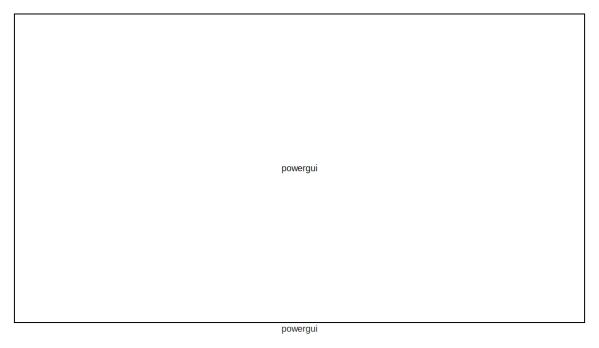
[diagram: root canvas - part 1/4, top left region]
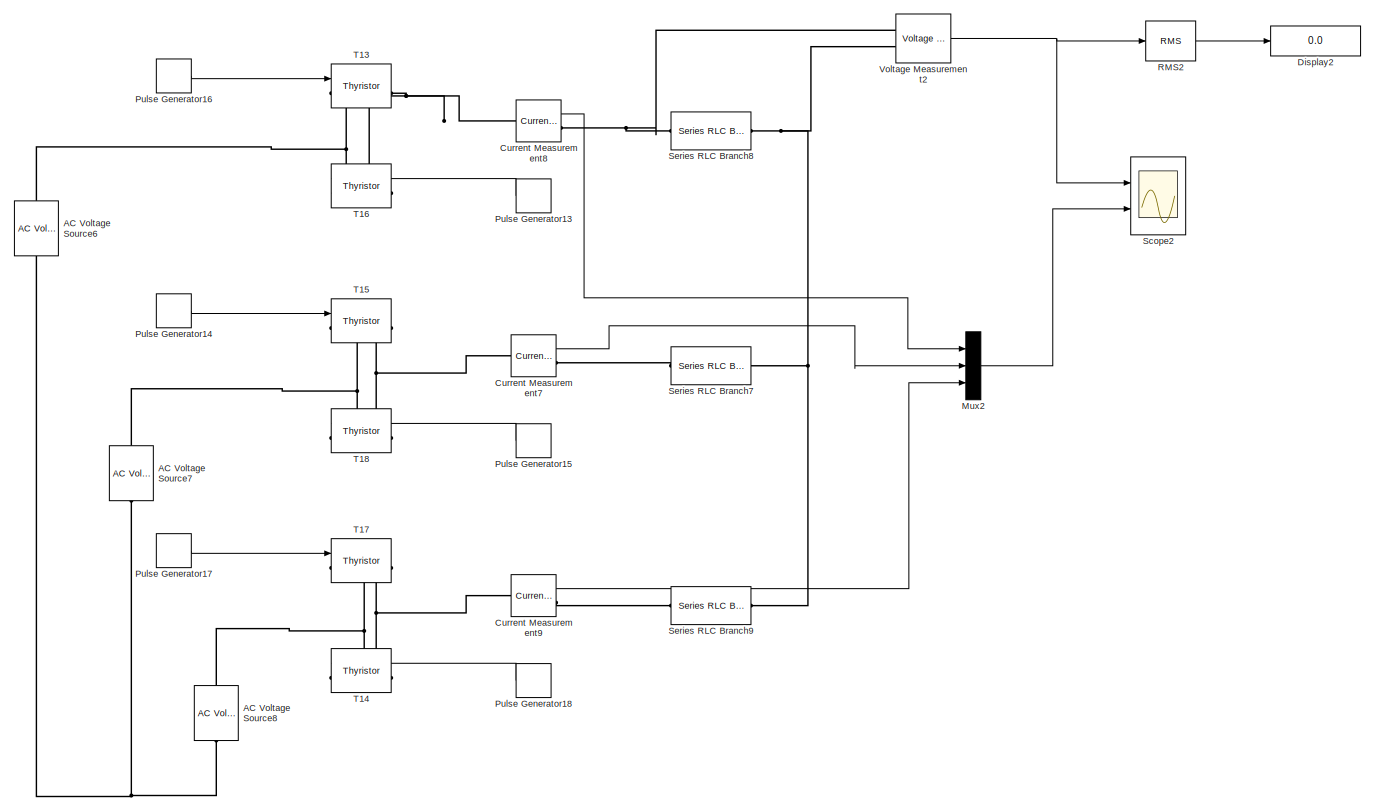
[diagram: root canvas - part 2/4, bottom right region]
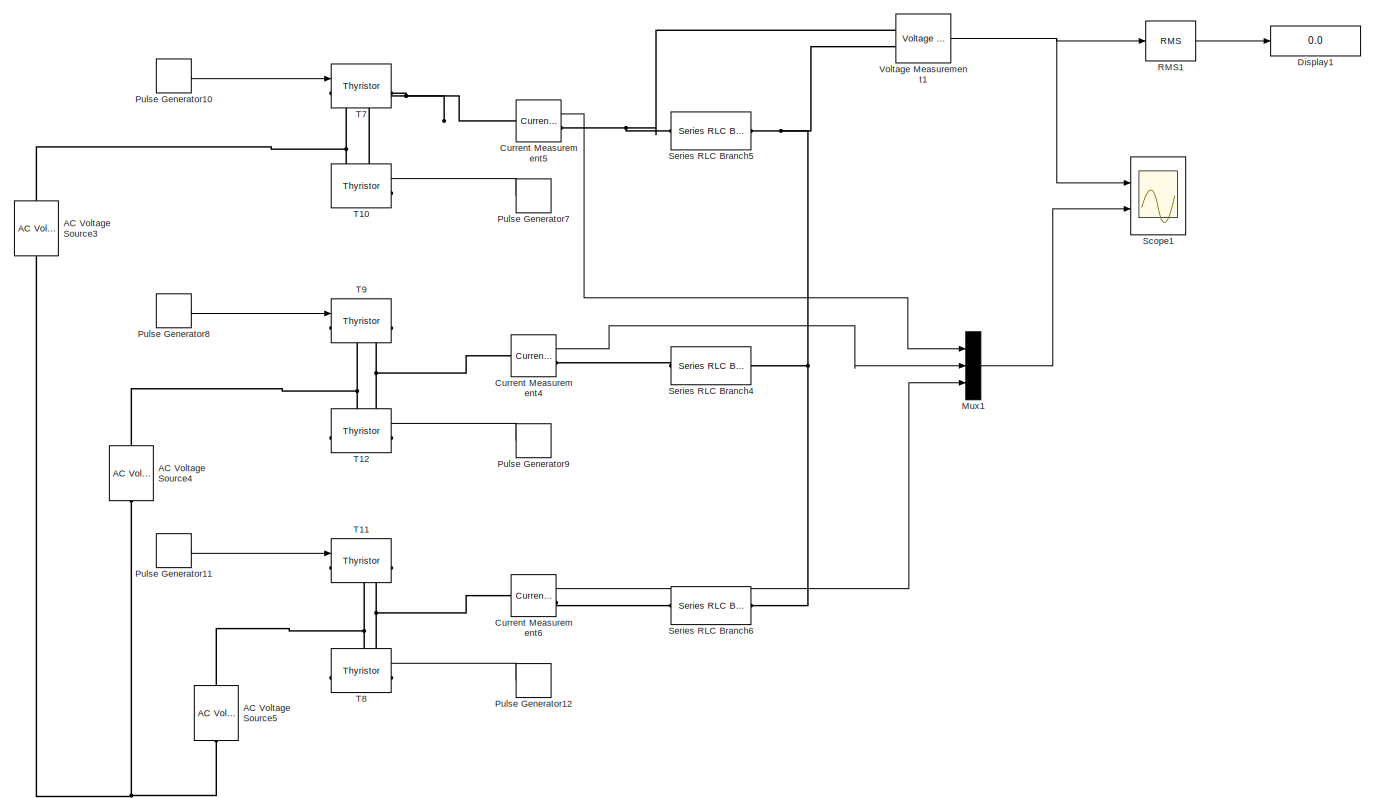
[diagram: root canvas - part 3/4, bottom center region]
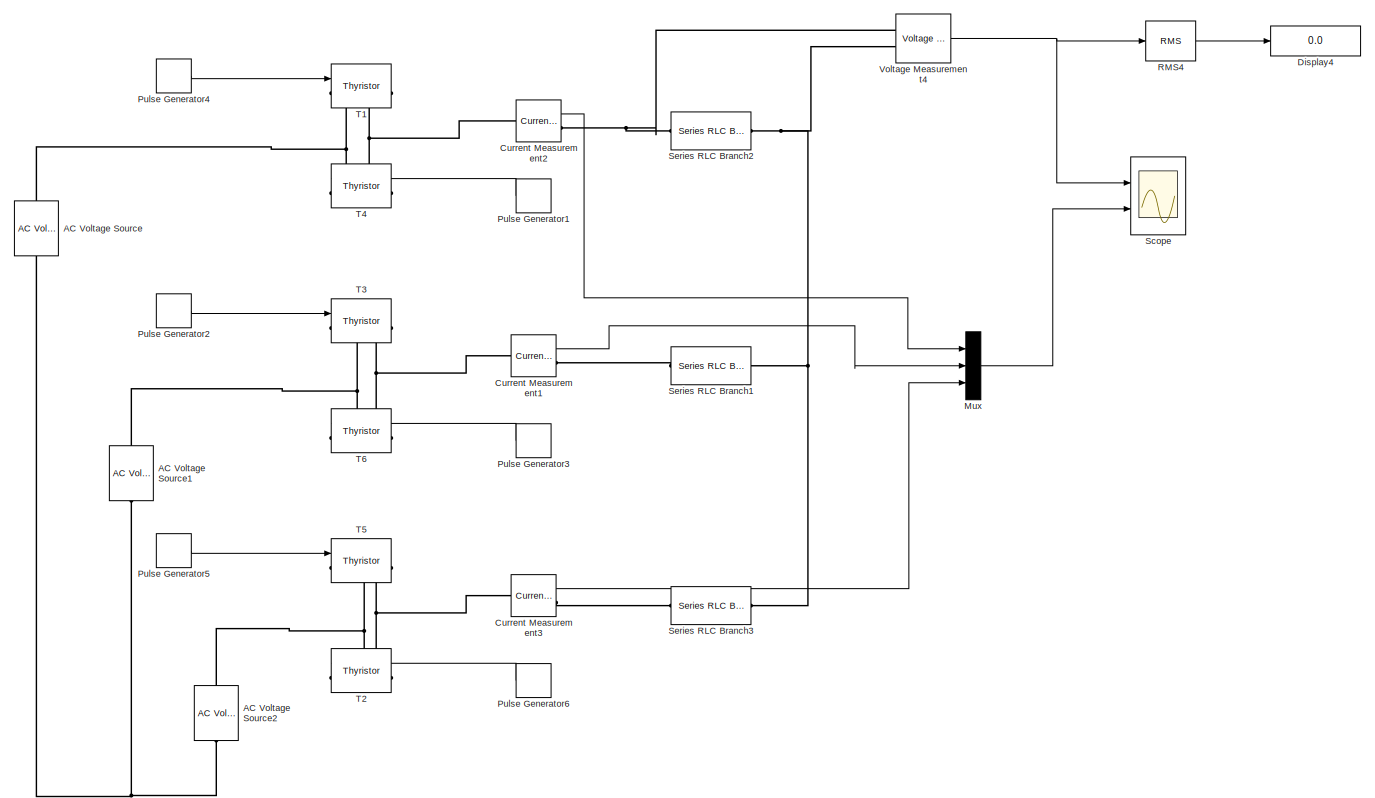
[diagram: root canvas - part 4/4, bottom left region]
MODEL slx_1764f9db46f4
KIND model
CONFIG AbsTol = auto
CONFIG EnableMultiTasking = off
CONFIG FixedStep = auto
CONFIG MaxStep = 1e-4
CONFIG MinStep = auto
CONFIG RelTol = 1e-3
CONFIG SampleTimeConstraint = Unconstrained
CONFIG SolverName = ode23tb
CONFIG StartTime = 0.0
CONFIG StopTime = 0.1
BLOCK [Reference] AC Voltage Source  REF=spsACVoltageSourceLib/AC Voltage Source
  Ports = [0, 0, 0, 0, 0, 1, 1]
  SourceBlock = spsACVoltageSourceLib/AC Voltage Source
  SourceProductBaseCode = PS
  SourceType = AC Voltage Source
BLOCK [Reference] AC Voltage Source1  REF=spsACVoltageSourceLib/AC Voltage Source
  Ports = [0, 0, 0, 0, 0, 1, 1]
  SourceBlock = spsACVoltageSourceLib/AC Voltage Source
  SourceProductBaseCode = PS
  SourceType = AC Voltage Source
BLOCK [Reference] AC Voltage Source2  REF=spsACVoltageSourceLib/AC Voltage Source
  Ports = [0, 0, 0, 0, 0, 1, 1]
  SourceBlock = spsACVoltageSourceLib/AC Voltage Source
  SourceProductBaseCode = PS
  SourceType = AC Voltage Source
BLOCK [Reference] AC Voltage Source3  REF=spsACVoltageSourceLib/AC Voltage Source
  Ports = [0, 0, 0, 0, 0, 1, 1]
  SourceBlock = spsACVoltageSourceLib/AC Voltage Source
  SourceProductBaseCode = PS
  SourceType = AC Voltage Source
BLOCK [Reference] AC Voltage Source4  REF=spsACVoltageSourceLib/AC Voltage Source
  Ports = [0, 0, 0, 0, 0, 1, 1]
  SourceBlock = spsACVoltageSourceLib/AC Voltage Source
  SourceProductBaseCode = PS
  SourceType = AC Voltage Source
BLOCK [Reference] AC Voltage Source5  REF=spsACVoltageSourceLib/AC Voltage Source
  Ports = [0, 0, 0, 0, 0, 1, 1]
  SourceBlock = spsACVoltageSourceLib/AC Voltage Source
  SourceProductBaseCode = PS
  SourceType = AC Voltage Source
BLOCK [Reference] AC Voltage Source6  REF=spsACVoltageSourceLib/AC Voltage Source
  Ports = [0, 0, 0, 0, 0, 1, 1]
  SourceBlock = spsACVoltageSourceLib/AC Voltage Source
  SourceProductBaseCode = PS
  SourceType = AC Voltage Source
BLOCK [Reference] AC Voltage Source7  REF=spsACVoltageSourceLib/AC Voltage Source
  Ports = [0, 0, 0, 0, 0, 1, 1]
  SourceBlock = spsACVoltageSourceLib/AC Voltage Source
  SourceProductBaseCode = PS
  SourceType = AC Voltage Source
BLOCK [Reference] AC Voltage Source8  REF=spsACVoltageSourceLib/AC Voltage Source
  Ports = [0, 0, 0, 0, 0, 1, 1]
  SourceBlock = spsACVoltageSourceLib/AC Voltage Source
  SourceProductBaseCode = PS
  SourceType = AC Voltage Source
BLOCK [Reference] Current Measurement1  REF=spsCurrentMeasurementLib/Current Measurement
  Ports = [0, 1, 0, 0, 0, 1, 1]
  SourceBlock = spsCurrentMeasurementLib/Current Measurement
  SourceProductBaseCode = PS
  SourceType = Current Measurement
  UserDataPersistent = on
BLOCK [Reference] Current Measurement2  REF=spsCurrentMeasurementLib/Current Measurement
  Ports = [0, 1, 0, 0, 0, 1, 1]
  SourceBlock = spsCurrentMeasurementLib/Current Measurement
  SourceProductBaseCode = PS
  SourceType = Current Measurement
  UserDataPersistent = on
BLOCK [Reference] Current Measurement3  REF=spsCurrentMeasurementLib/Current Measurement
  Ports = [0, 1, 0, 0, 0, 1, 1]
  SourceBlock = spsCurrentMeasurementLib/Current Measurement
  SourceProductBaseCode = PS
  SourceType = Current Measurement
  UserDataPersistent = on
BLOCK [Reference] Current Measurement4  REF=spsCurrentMeasurementLib/Current Measurement
  Ports = [0, 1, 0, 0, 0, 1, 1]
  SourceBlock = spsCurrentMeasurementLib/Current Measurement
  SourceProductBaseCode = PS
  SourceType = Current Measurement
  UserDataPersistent = on
BLOCK [Reference] Current Measurement5  REF=spsCurrentMeasurementLib/Current Measurement
  Ports = [0, 1, 0, 0, 0, 1, 1]
  SourceBlock = spsCurrentMeasurementLib/Current Measurement
  SourceProductBaseCode = PS
  SourceType = Current Measurement
  UserDataPersistent = on
BLOCK [Reference] Current Measurement6  REF=spsCurrentMeasurementLib/Current Measurement
  Ports = [0, 1, 0, 0, 0, 1, 1]
  SourceBlock = spsCurrentMeasurementLib/Current Measurement
  SourceProductBaseCode = PS
  SourceType = Current Measurement
  UserDataPersistent = on
BLOCK [Reference] Current Measurement7  REF=spsCurrentMeasurementLib/Current Measurement
  Ports = [0, 1, 0, 0, 0, 1, 1]
  SourceBlock = spsCurrentMeasurementLib/Current Measurement
  SourceProductBaseCode = PS
  SourceType = Current Measurement
  UserDataPersistent = on
BLOCK [Reference] Current Measurement8  REF=spsCurrentMeasurementLib/Current Measurement
  Ports = [0, 1, 0, 0, 0, 1, 1]
  SourceBlock = spsCurrentMeasurementLib/Current Measurement
  SourceProductBaseCode = PS
  SourceType = Current Measurement
  UserDataPersistent = on
BLOCK [Reference] Current Measurement9  REF=spsCurrentMeasurementLib/Current Measurement
  Ports = [0, 1, 0, 0, 0, 1, 1]
  SourceBlock = spsCurrentMeasurementLib/Current Measurement
  SourceProductBaseCode = PS
  SourceType = Current Measurement
  UserDataPersistent = on
BLOCK [Display] Display1
  Decimation = 1
  Ports = [1]
BLOCK [Display] Display2
  Decimation = 1
  Ports = [1]
BLOCK [Display] Display4
  Decimation = 1
  Ports = [1]
BLOCK [Mux] Mux
  DisplayOption = bar
  Inputs = 3
  Ports = [3, 1]
BLOCK [Mux] Mux1
  DisplayOption = bar
  Inputs = 3
  Ports = [3, 1]
BLOCK [Mux] Mux2
  DisplayOption = bar
  Inputs = 3
  Ports = [3, 1]
BLOCK [DiscretePulseGenerator] Pulse Generator1
  Amplitude = 5
  NameLocation = top
  Period = 0.02
  PhaseDelay = (k+180)*(0.02/360)
  Ports = [0, 1]
  PulseType = Time based
  PulseWidth = 60
BLOCK [DiscretePulseGenerator] Pulse Generator10
  Amplitude = 5
  Period = 0.02
  PhaseDelay = m*(0.02/360)
  Ports = [0, 1]
  PulseType = Time based
  PulseWidth = 60
BLOCK [DiscretePulseGenerator] Pulse Generator11
  Amplitude = 5
  Period = 0.02
  PhaseDelay = (m+240)*(0.02/360)
  Ports = [0, 1]
  PulseType = Time based
  PulseWidth = 60
BLOCK [DiscretePulseGenerator] Pulse Generator12
  Amplitude = 5
  NameLocation = top
  Period = 0.02
  PhaseDelay = (m+60)*(0.02/360)
  Ports = [0, 1]
  PulseType = Time based
  PulseWidth = 60
BLOCK [DiscretePulseGenerator] Pulse Generator13
  Amplitude = 5
  NameLocation = top
  Period = 0.02
  PhaseDelay = (n+180)*(0.02/360)
  Ports = [0, 1]
  PulseType = Time based
  PulseWidth = 60
BLOCK [DiscretePulseGenerator] Pulse Generator14
  Amplitude = 5
  Period = 0.02
  PhaseDelay = (n+120)*(0.02/360)
  Ports = [0, 1]
  PulseType = Time based
  PulseWidth = 60
BLOCK [DiscretePulseGenerator] Pulse Generator15
  Amplitude = 5
  NameLocation = top
  Period = 0.02
  PhaseDelay = (n+300)*(0.02/360)
  Ports = [0, 1]
  PulseType = Time based
  PulseWidth = 60
BLOCK [DiscretePulseGenerator] Pulse Generator16
  Amplitude = 5
  Period = 0.02
  PhaseDelay = n*(0.02/360)
  Ports = [0, 1]
  PulseType = Time based
  PulseWidth = 60
BLOCK [DiscretePulseGenerator] Pulse Generator17
  Amplitude = 5
  Period = 0.02
  PhaseDelay = (n+240)*(0.02/360)
  Ports = [0, 1]
  PulseType = Time based
  PulseWidth = 60
BLOCK [DiscretePulseGenerator] Pulse Generator18
  Amplitude = 5
  NameLocation = top
  Period = 0.02
  PhaseDelay = (n+60)*(0.02/360)
  Ports = [0, 1]
  PulseType = Time based
  PulseWidth = 60
BLOCK [DiscretePulseGenerator] Pulse Generator2
  Amplitude = 5
  Period = 0.02
  PhaseDelay = (k+120)*(0.02/360)
  Ports = [0, 1]
  PulseType = Time based
  PulseWidth = 60
BLOCK [DiscretePulseGenerator] Pulse Generator3
  Amplitude = 5
  NameLocation = top
  Period = 0.02
  PhaseDelay = (k+300)*(0.02/360)
  Ports = [0, 1]
  PulseType = Time based
  PulseWidth = 60
BLOCK [DiscretePulseGenerator] Pulse Generator4
  Amplitude = 5
  Period = 0.02
  PhaseDelay = k*(0.02/360)
  Ports = [0, 1]
  PulseType = Time based
  PulseWidth = 60
BLOCK [DiscretePulseGenerator] Pulse Generator5
  Amplitude = 5
  Period = 0.02
  PhaseDelay = (k+240)*(0.02/360)
  Ports = [0, 1]
  PulseType = Time based
  PulseWidth = 60
BLOCK [DiscretePulseGenerator] Pulse Generator6
  Amplitude = 5
  NameLocation = top
  Period = 0.02
  PhaseDelay = (k+60)*(0.02/360)
  Ports = [0, 1]
  PulseType = Time based
  PulseWidth = 60
BLOCK [DiscretePulseGenerator] Pulse Generator7
  Amplitude = 5
  NameLocation = top
  Period = 0.02
  PhaseDelay = (m+180)*(0.02/360)
  Ports = [0, 1]
  PulseType = Time based
  PulseWidth = 60
BLOCK [DiscretePulseGenerator] Pulse Generator8
  Amplitude = 5
  Period = 0.02
  PhaseDelay = (m+120)*(0.02/360)
  Ports = [0, 1]
  PulseType = Time based
  PulseWidth = 60
BLOCK [DiscretePulseGenerator] Pulse Generator9
  Amplitude = 5
  NameLocation = top
  Period = 0.02
  PhaseDelay = (m+300)*(0.02/360)
  Ports = [0, 1]
  PulseType = Time based
  PulseWidth = 60
BLOCK [Reference] RMS1  REF=spsRMSLib/RMS
  Ports = [1, 1]
  SourceBlock = spsRMSLib/RMS
  SourceProductBaseCode = PS
  SourceType = RMS
BLOCK [Reference] RMS2  REF=spsRMSLib/RMS
  Ports = [1, 1]
  SourceBlock = spsRMSLib/RMS
  SourceProductBaseCode = PS
  SourceType = RMS
BLOCK [Reference] RMS4  REF=spsRMSLib/RMS
  Ports = [1, 1]
  SourceBlock = spsRMSLib/RMS
  SourceProductBaseCode = PS
  SourceType = RMS
BLOCK [Scope] Scope
  Floating = off
  NumInputPorts = 2
  Ports = [2]
  ScopeSpecificationString = Simulink.scopes.TimeScopeBlockCfg('CurrentConfiguration', extmgr.ConfigurationSet(extmgr.Configuration('Core','General UI',true),extmgr.Configuration('Core','Source UI',true),extmgr.Configuration('Sources','WiredSimulink',true),extmgr.Configuration('Visuals','Time Domain',true,'SerializedDisplays',{struct('MinYLimReal','-123.65419','MaxYLimReal','123.65419','YLabelReal','','MinYLimMag',' 0.00000',...<+2474ch>
BLOCK [Scope] Scope1
  Floating = off
  NumInputPorts = 2
  Ports = [2]
  ScopeSpecificationString = Simulink.scopes.TimeScopeBlockCfg('CurrentConfiguration', extmgr.ConfigurationSet(extmgr.Configuration('Core','General UI',true),extmgr.Configuration('Core','Source UI',true),extmgr.Configuration('Sources','WiredSimulink',true,'DataLoggingVariableName','ScopeData1'),extmgr.Configuration('Visuals','Time Domain',true,'SerializedDisplays',{struct('MinYLimReal','-94.52564','MaxYLimReal','94.52563','YL...<+2464ch>
BLOCK [Scope] Scope2
  Floating = off
  NumInputPorts = 2
  Ports = [2]
  ScopeSpecificationString = Simulink.scopes.TimeScopeBlockCfg('CurrentConfiguration', extmgr.ConfigurationSet(extmgr.Configuration('Core','General UI',true),extmgr.Configuration('Core','Source UI',true),extmgr.Configuration('Sources','WiredSimulink',true,'DataLoggingVariableName','ScopeData2'),extmgr.Configuration('Visuals','Time Domain',true,'SerializedDisplays',{struct('MinYLimReal','-55.26545','MaxYLimReal','54.42493','YL...<+2511ch>
BLOCK [Reference] Series RLC Branch1  REF=spsSeriesRLCBranchLib/Series RLC Branch
  NameLocation = top
  Ports = [0, 0, 0, 0, 0, 1, 1]
  SourceBlock = spsSeriesRLCBranchLib/Series RLC Branch
  SourceProductBaseCode = PS
  SourceType = Series RLC Branch
BLOCK [Reference] Series RLC Branch2  REF=spsSeriesRLCBranchLib/Series RLC Branch
  NameLocation = top
  Ports = [0, 0, 0, 0, 0, 1, 1]
  SourceBlock = spsSeriesRLCBranchLib/Series RLC Branch
  SourceProductBaseCode = PS
  SourceType = Series RLC Branch
BLOCK [Reference] Series RLC Branch3  REF=spsSeriesRLCBranchLib/Series RLC Branch
  NameLocation = top
  Ports = [0, 0, 0, 0, 0, 1, 1]
  SourceBlock = spsSeriesRLCBranchLib/Series RLC Branch
  SourceProductBaseCode = PS
  SourceType = Series RLC Branch
BLOCK [Reference] Series RLC Branch4  REF=spsSeriesRLCBranchLib/Series RLC Branch
  NameLocation = top
  Ports = [0, 0, 0, 0, 0, 1, 1]
  SourceBlock = spsSeriesRLCBranchLib/Series RLC Branch
  SourceProductBaseCode = PS
  SourceType = Series RLC Branch
BLOCK [Reference] Series RLC Branch5  REF=spsSeriesRLCBranchLib/Series RLC Branch
  NameLocation = top
  Ports = [0, 0, 0, 0, 0, 1, 1]
  SourceBlock = spsSeriesRLCBranchLib/Series RLC Branch
  SourceProductBaseCode = PS
  SourceType = Series RLC Branch
BLOCK [Reference] Series RLC Branch6  REF=spsSeriesRLCBranchLib/Series RLC Branch
  NameLocation = top
  Ports = [0, 0, 0, 0, 0, 1, 1]
  SourceBlock = spsSeriesRLCBranchLib/Series RLC Branch
  SourceProductBaseCode = PS
  SourceType = Series RLC Branch
BLOCK [Reference] Series RLC Branch7  REF=spsSeriesRLCBranchLib/Series RLC Branch
  NameLocation = top
  Ports = [0, 0, 0, 0, 0, 1, 1]
  SourceBlock = spsSeriesRLCBranchLib/Series RLC Branch
  SourceProductBaseCode = PS
  SourceType = Series RLC Branch
BLOCK [Reference] Series RLC Branch8  REF=spsSeriesRLCBranchLib/Series RLC Branch
  NameLocation = top
  Ports = [0, 0, 0, 0, 0, 1, 1]
  SourceBlock = spsSeriesRLCBranchLib/Series RLC Branch
  SourceProductBaseCode = PS
  SourceType = Series RLC Branch
BLOCK [Reference] Series RLC Branch9  REF=spsSeriesRLCBranchLib/Series RLC Branch
  NameLocation = top
  Ports = [0, 0, 0, 0, 0, 1, 1]
  SourceBlock = spsSeriesRLCBranchLib/Series RLC Branch
  SourceProductBaseCode = PS
  SourceType = Series RLC Branch
BLOCK [Reference] T1  REF=spsThyristorLib/Thyristor
  Ports = [1, 1, 0, 0, 0, 1, 1]
  SourceBlock = spsThyristorLib/Thyristor
  SourceProductBaseCode = PS
  SourceType = Thyristor
BLOCK [Reference] T10  REF=spsThyristorLib/Thyristor
  NameLocation = top
  Ports = [1, 1, 0, 0, 0, 1, 1]
  SourceBlock = spsThyristorLib/Thyristor
  SourceProductBaseCode = PS
  SourceType = Thyristor
BLOCK [Reference] T11  REF=spsThyristorLib/Thyristor
  Ports = [1, 1, 0, 0, 0, 1, 1]
  SourceBlock = spsThyristorLib/Thyristor
  SourceProductBaseCode = PS
  SourceType = Thyristor
BLOCK [Reference] T12  REF=spsThyristorLib/Thyristor
  NameLocation = top
  Ports = [1, 1, 0, 0, 0, 1, 1]
  SourceBlock = spsThyristorLib/Thyristor
  SourceProductBaseCode = PS
  SourceType = Thyristor
BLOCK [Reference] T13  REF=spsThyristorLib/Thyristor
  Ports = [1, 1, 0, 0, 0, 1, 1]
  SourceBlock = spsThyristorLib/Thyristor
  SourceProductBaseCode = PS
  SourceType = Thyristor
BLOCK [Reference] T14  REF=spsThyristorLib/Thyristor
  NameLocation = top
  Ports = [1, 1, 0, 0, 0, 1, 1]
  SourceBlock = spsThyristorLib/Thyristor
  SourceProductBaseCode = PS
  SourceType = Thyristor
BLOCK [Reference] T15  REF=spsThyristorLib/Thyristor
  Ports = [1, 1, 0, 0, 0, 1, 1]
  SourceBlock = spsThyristorLib/Thyristor
  SourceProductBaseCode = PS
  SourceType = Thyristor
BLOCK [Reference] T16  REF=spsThyristorLib/Thyristor
  NameLocation = top
  Ports = [1, 1, 0, 0, 0, 1, 1]
  SourceBlock = spsThyristorLib/Thyristor
  SourceProductBaseCode = PS
  SourceType = Thyristor
BLOCK [Reference] T17  REF=spsThyristorLib/Thyristor
  Ports = [1, 1, 0, 0, 0, 1, 1]
  SourceBlock = spsThyristorLib/Thyristor
  SourceProductBaseCode = PS
  SourceType = Thyristor
BLOCK [Reference] T18  REF=spsThyristorLib/Thyristor
  NameLocation = top
  Ports = [1, 1, 0, 0, 0, 1, 1]
  SourceBlock = spsThyristorLib/Thyristor
  SourceProductBaseCode = PS
  SourceType = Thyristor
BLOCK [Reference] T2  REF=spsThyristorLib/Thyristor
  NameLocation = top
  Ports = [1, 1, 0, 0, 0, 1, 1]
  SourceBlock = spsThyristorLib/Thyristor
  SourceProductBaseCode = PS
  SourceType = Thyristor
BLOCK [Reference] T3  REF=spsThyristorLib/Thyristor
  Ports = [1, 1, 0, 0, 0, 1, 1]
  SourceBlock = spsThyristorLib/Thyristor
  SourceProductBaseCode = PS
  SourceType = Thyristor
BLOCK [Reference] T4  REF=spsThyristorLib/Thyristor
  NameLocation = top
  Ports = [1, 1, 0, 0, 0, 1, 1]
  SourceBlock = spsThyristorLib/Thyristor
  SourceProductBaseCode = PS
  SourceType = Thyristor
BLOCK [Reference] T5  REF=spsThyristorLib/Thyristor
  Ports = [1, 1, 0, 0, 0, 1, 1]
  SourceBlock = spsThyristorLib/Thyristor
  SourceProductBaseCode = PS
  SourceType = Thyristor
BLOCK [Reference] T6  REF=spsThyristorLib/Thyristor
  NameLocation = top
  Ports = [1, 1, 0, 0, 0, 1, 1]
  SourceBlock = spsThyristorLib/Thyristor
  SourceProductBaseCode = PS
  SourceType = Thyristor
BLOCK [Reference] T7  REF=spsThyristorLib/Thyristor
  Ports = [1, 1, 0, 0, 0, 1, 1]
  SourceBlock = spsThyristorLib/Thyristor
  SourceProductBaseCode = PS
  SourceType = Thyristor
BLOCK [Reference] T8  REF=spsThyristorLib/Thyristor
  NameLocation = top
  Ports = [1, 1, 0, 0, 0, 1, 1]
  SourceBlock = spsThyristorLib/Thyristor
  SourceProductBaseCode = PS
  SourceType = Thyristor
BLOCK [Reference] T9  REF=spsThyristorLib/Thyristor
  Ports = [1, 1, 0, 0, 0, 1, 1]
  SourceBlock = spsThyristorLib/Thyristor
  SourceProductBaseCode = PS
  SourceType = Thyristor
BLOCK [Reference] Voltage Measurement1  REF=spsVoltageMeasurementLib/Voltage Measurement
  Ports = [0, 1, 0, 0, 0, 2]
  SourceBlock = spsVoltageMeasurementLib/Voltage Measurement
  SourceProductBaseCode = PS
  SourceType = Voltage Measurement
  UserDataPersistent = on
BLOCK [Reference] Voltage Measurement2  REF=spsVoltageMeasurementLib/Voltage Measurement
  Ports = [0, 1, 0, 0, 0, 2]
  SourceBlock = spsVoltageMeasurementLib/Voltage Measurement
  SourceProductBaseCode = PS
  SourceType = Voltage Measurement
  UserDataPersistent = on
BLOCK [Reference] Voltage Measurement4  REF=spsVoltageMeasurementLib/Voltage Measurement
  Ports = [0, 1, 0, 0, 0, 2]
  SourceBlock = spsVoltageMeasurementLib/Voltage Measurement
  SourceProductBaseCode = PS
  SourceType = Voltage Measurement
  UserDataPersistent = on
BLOCK [Reference] powergui  REF=spspowerguiLib/powergui
  Ports = []
  Priority = 1
  SourceBlock = spspowerguiLib/powergui
  SourceProductBaseCode = PS
  SourceType = PSB option menu block
LINE Current Measurement1:1 -> Mux:2
LINE Current Measurement2:1 -> Mux:1
LINE Current Measurement3:1 -> Mux:3
LINE Current Measurement4:1 -> Mux1:2
LINE Current Measurement5:1 -> Mux1:1
LINE Current Measurement6:1 -> Mux1:3
LINE Current Measurement7:1 -> Mux2:2
LINE Current Measurement8:1 -> Mux2:1
LINE Current Measurement9:1 -> Mux2:3
LINE Mux1:1 -> Scope1:2
LINE Mux2:1 -> Scope2:2
LINE Mux:1 -> Scope:2
LINE Pulse Generator10:1 -> T7:1
LINE Pulse Generator11:1 -> T11:1
LINE Pulse Generator12:1 -> T8:1
LINE Pulse Generator13:1 -> T16:1
LINE Pulse Generator14:1 -> T15:1
LINE Pulse Generator15:1 -> T18:1
LINE Pulse Generator16:1 -> T13:1
LINE Pulse Generator17:1 -> T17:1
LINE Pulse Generator18:1 -> T14:1
LINE Pulse Generator1:1 -> T4:1
LINE Pulse Generator2:1 -> T3:1
LINE Pulse Generator3:1 -> T6:1
LINE Pulse Generator4:1 -> T1:1
LINE Pulse Generator5:1 -> T5:1
LINE Pulse Generator6:1 -> T2:1
LINE Pulse Generator7:1 -> T10:1
LINE Pulse Generator8:1 -> T9:1
LINE Pulse Generator9:1 -> T12:1
LINE RMS1:1 -> Display1:1
LINE RMS2:1 -> Display2:1
LINE RMS4:1 -> Display4:1
NET Voltage Measurement1:1 -> RMS1:1, Scope1:1
NET Voltage Measurement2:1 -> RMS2:1, Scope2:1
NET Voltage Measurement4:1 -> RMS4:1, Scope:1
PNET net1: AC Voltage Source1:LConn1 -- AC Voltage Source2:LConn1 -- AC Voltage Source:LConn1
PNET net2: AC Voltage Source1:RConn1 -- T3:LConn1 -- T6:RConn1
PNET net3: AC Voltage Source2:RConn1 -- T2:RConn1 -- T5:LConn1
PNET net4: AC Voltage Source3:LConn1 -- AC Voltage Source4:LConn1 -- AC Voltage Source5:LConn1
PNET net5: AC Voltage Source3:RConn1 -- T10:RConn1 -- T7:LConn1
PNET net6: AC Voltage Source4:RConn1 -- T12:RConn1 -- T9:LConn1
PNET net7: AC Voltage Source5:RConn1 -- T11:LConn1 -- T8:RConn1
PNET net8: AC Voltage Source6:LConn1 -- AC Voltage Source7:LConn1 -- AC Voltage Source8:LConn1
PNET net9: AC Voltage Source6:RConn1 -- T13:LConn1 -- T16:RConn1
PNET net10: AC Voltage Source7:RConn1 -- T15:LConn1 -- T18:RConn1
PNET net11: AC Voltage Source8:RConn1 -- T14:RConn1 -- T17:LConn1
PNET net12: AC Voltage Source:RConn1 -- T1:LConn1 -- T4:RConn1
PNET net13: Current Measurement1:LConn1 -- T3:RConn1 -- T6:LConn1
PLINE Current Measurement1:RConn1 -- Series RLC Branch1:RConn1
PNET net14: Current Measurement2:LConn1 -- T1:RConn1 -- T4:LConn1
PNET net15: Current Measurement2:RConn1 -- Series RLC Branch2:RConn1 -- Voltage Measurement4:LConn1
PNET net16: Current Measurement3:LConn1 -- T2:LConn1 -- T5:RConn1
PLINE Current Measurement3:RConn1 -- Series RLC Branch3:RConn1
PNET net17: Current Measurement4:LConn1 -- T12:LConn1 -- T9:RConn1
PLINE Current Measurement4:RConn1 -- Series RLC Branch4:RConn1
PNET net18: Current Measurement5:LConn1 -- T10:LConn1 -- T7:RConn1
PNET net19: Current Measurement5:RConn1 -- Series RLC Branch5:RConn1 -- Voltage Measurement1:LConn1
PNET net20: Current Measurement6:LConn1 -- T11:RConn1 -- T8:LConn1
PLINE Current Measurement6:RConn1 -- Series RLC Branch6:RConn1
PNET net21: Current Measurement7:LConn1 -- T15:RConn1 -- T18:LConn1
PLINE Current Measurement7:RConn1 -- Series RLC Branch7:RConn1
PNET net22: Current Measurement8:LConn1 -- T13:RConn1 -- T16:LConn1
PNET net23: Current Measurement8:RConn1 -- Series RLC Branch8:RConn1 -- Voltage Measurement2:LConn1
PNET net24: Current Measurement9:LConn1 -- T14:LConn1 -- T17:RConn1
PLINE Current Measurement9:RConn1 -- Series RLC Branch9:RConn1
PNET net25: Series RLC Branch1:LConn1 -- Series RLC Branch2:LConn1 -- Series RLC Branch3:LConn1 -- Voltage Measurement4:LConn2
PNET net26: Series RLC Branch4:LConn1 -- Series RLC Branch5:LConn1 -- Series RLC Branch6:LConn1 -- Voltage Measurement1:LConn2
PNET net27: Series RLC Branch7:LConn1 -- Series RLC Branch8:LConn1 -- Series RLC Branch9:LConn1 -- Voltage Measurement2:LConn2
note: NET lines group one-source signal fan-out (src -> all destinations, sorted); 1:1 wires keep LINE; PNET lines group multi-terminal physical nets as a canonical sorted terminal list (undirected conserving connections); 2-terminal nets keep the pairwise PLINE form
